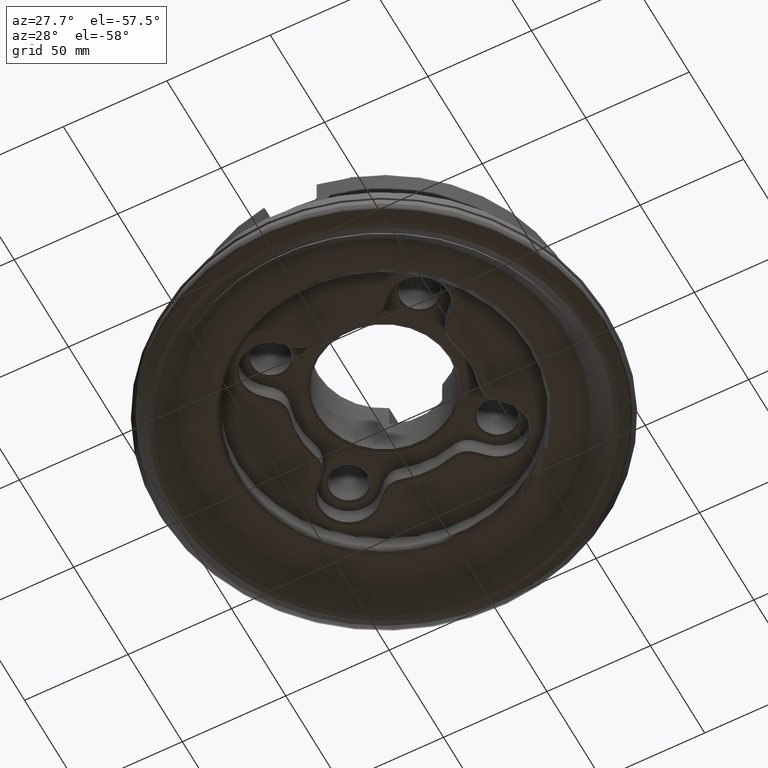
[diagram: clean part render]
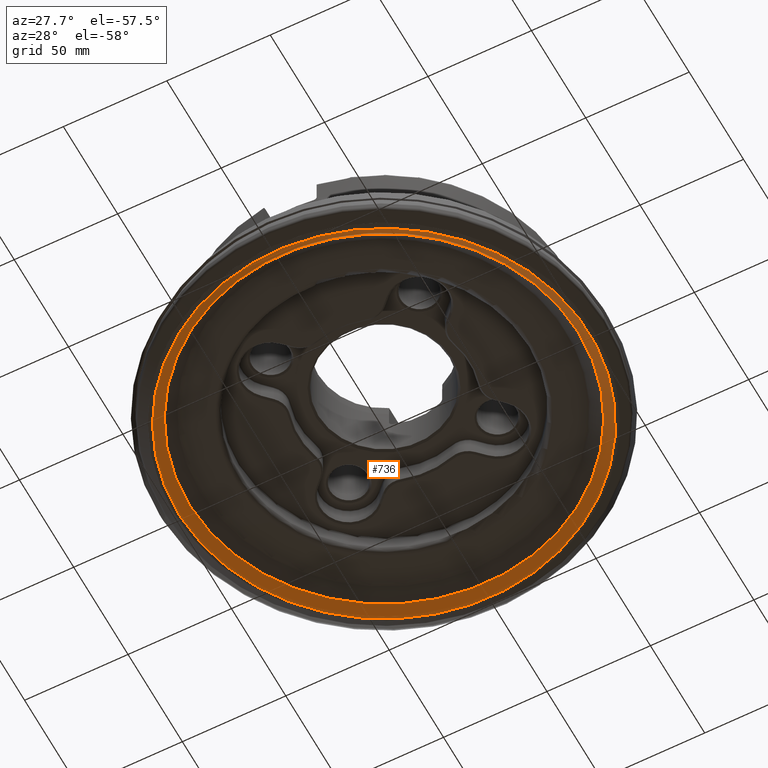
[diagram: same view with one face highlighted and labeled with its STEP entity id]
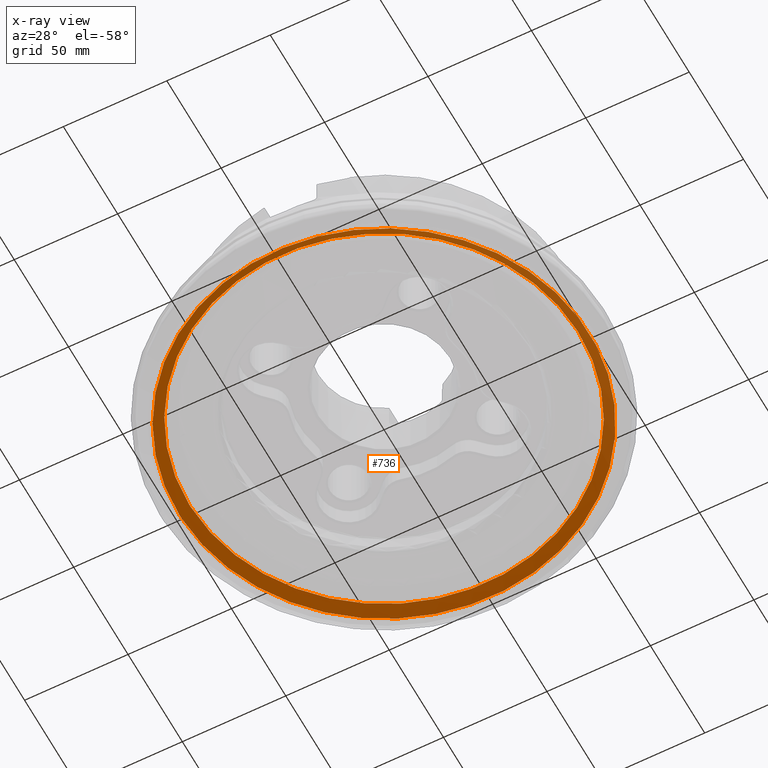
[diagram: x-ray of the same camera — body ghosted, the highlighted face saturated]
A machine part, auxiliary view. The second image highlights one B-rep face of the part: STEP entity #736.
The next image is the same camera in x-ray: the body ghosted, the highlighted face saturated — about 0% of this face is hidden behind the body in this view.
In plain terms, the highlighted face is a SurfaceOfRevolution surface.
Its self-contained STEP definition (entity closure, byte-faithful):
#125=SURFACE_OF_REVOLUTION('',#2584,#155);
#155=AXIS1_PLACEMENT('',#4911,#3645);
#736=ADVANCED_FACE('',(#908,#909),#125,.F.);
#908=FACE_BOUND('',#1152,.T.);
#909=FACE_BOUND('',#1153,.T.);
#1152=EDGE_LOOP('',(#1778));
#1153=EDGE_LOOP('',(#1779));
#1778=ORIENTED_EDGE('',*,*,#2319,.T.);
#1779=ORIENTED_EDGE('',*,*,#2320,.F.);
#2006=VERTEX_POINT('',#4897);
#2007=VERTEX_POINT('',#4905);
#2319=EDGE_CURVE('',#2006,#2006,#2496,.T.);
#2320=EDGE_CURVE('',#2007,#2007,#2497,.T.);
#2496=CIRCLE('',#2899,94.0520604653713);
#2497=CIRCLE('',#2900,99.1060103240787);
#2584=B_SPLINE_CURVE_WITH_KNOTS('',3,(#4906,#4907,#4908,#4909,#4910),
 .UNSPECIFIED.,.F.,.F.,(4,1,4),(0.,0.5,1.),.UNSPECIFIED.);
#2899=AXIS2_PLACEMENT_3D('',#4896,#3640,#3641);
#2900=AXIS2_PLACEMENT_3D('',#4904,#3643,#3644);
#3640=DIRECTION('',(-1.17145536458252E-15,0.,-1.));
#3641=DIRECTION('',(-1.,0.,1.17121241341741E-15));
#3643=DIRECTION('',(-1.17145536458252E-15,0.,-1.));
#3644=DIRECTION('',(-1.,0.,1.17138150591741E-15));
#3645=DIRECTION('',(-1.17145536458252E-15,0.,-1.));
#4896=CARTESIAN_POINT('',(4.70803932323187E-15,0.,4.01896603624304));
#4897=CARTESIAN_POINT('',(-94.0520604653713,0.,4.01896603624315));
#4904=CARTESIAN_POINT('',(2.19470868895792E-16,0.,0.187348895682428));
#4905=CARTESIAN_POINT('',(-99.1060103240787,0.,0.187348895682544));
#4906=CARTESIAN_POINT('',(-15.9958170801203,97.8066210350594,0.187348895682431));
#4907=CARTESIAN_POINT('',(-15.8839379517724,96.9473003249275,0.846573242761716));
#4908=CARTESIAN_POINT('',(-15.8626569670461,95.1981940022087,2.1591684096442));
#4909=CARTESIAN_POINT('',(-16.2402281002908,93.4484848942542,3.41575263284523));
#4910=CARTESIAN_POINT('',(-16.527201089914,92.5885613988866,4.01896603624306));
#4911=CARTESIAN_POINT('',(0.,0.,0.));